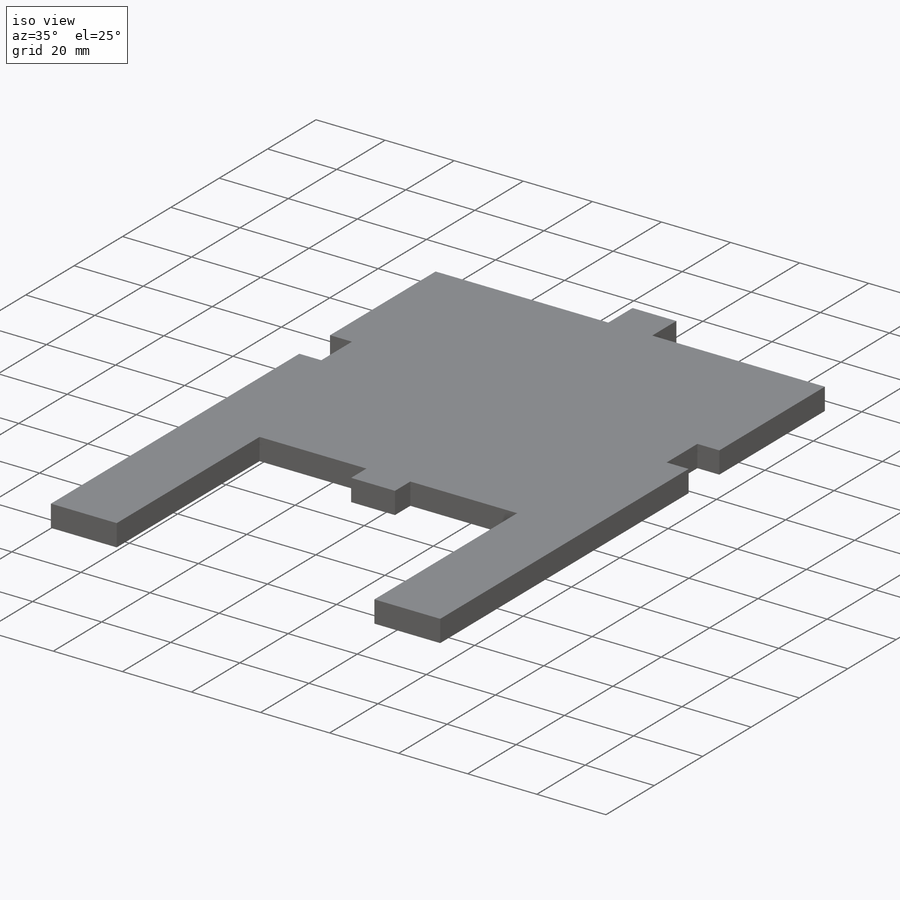
[diagram: iso view]
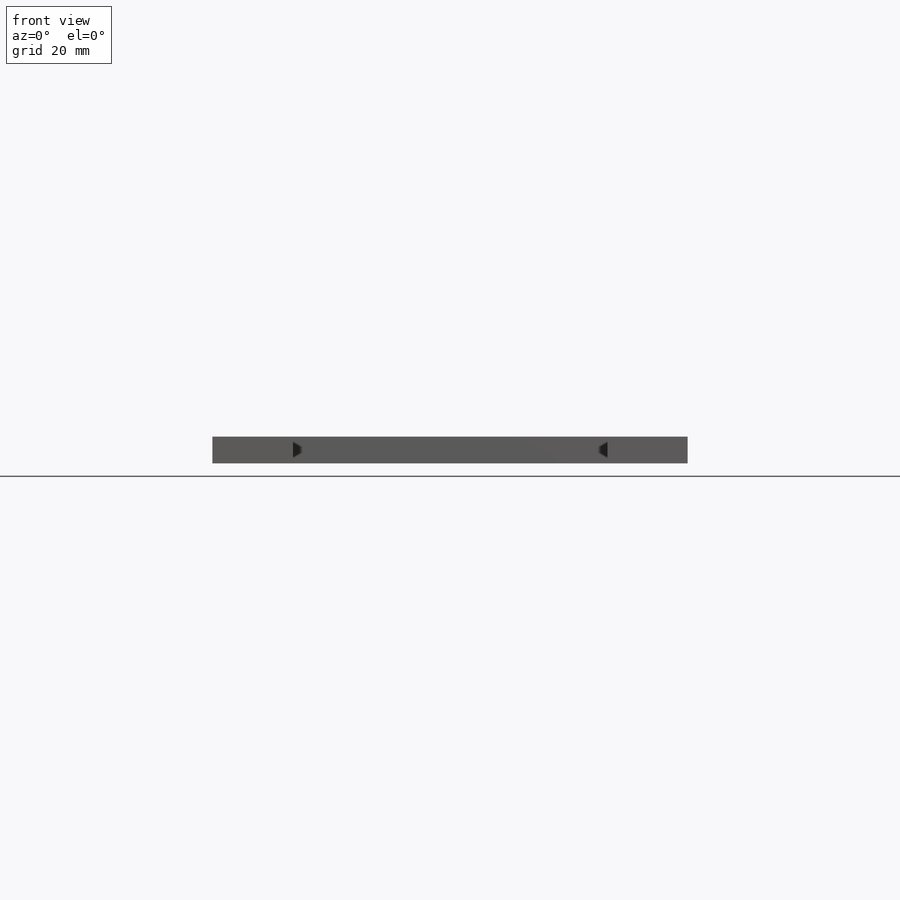
[diagram: front view]
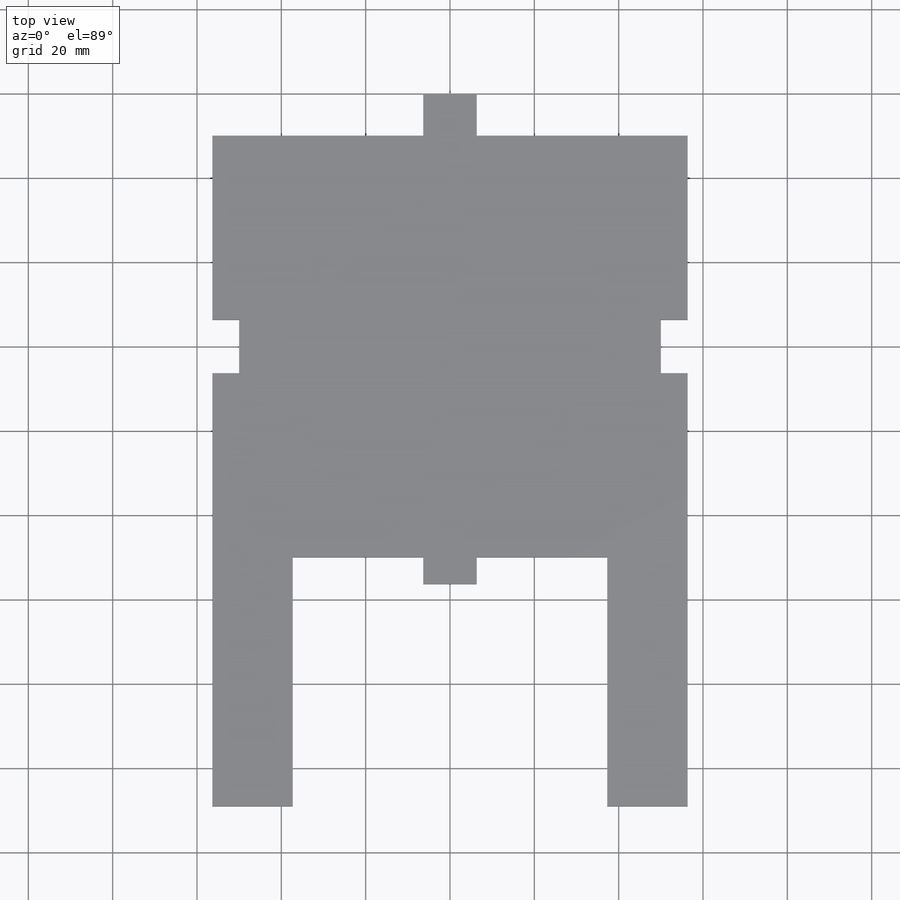
[diagram: top view]
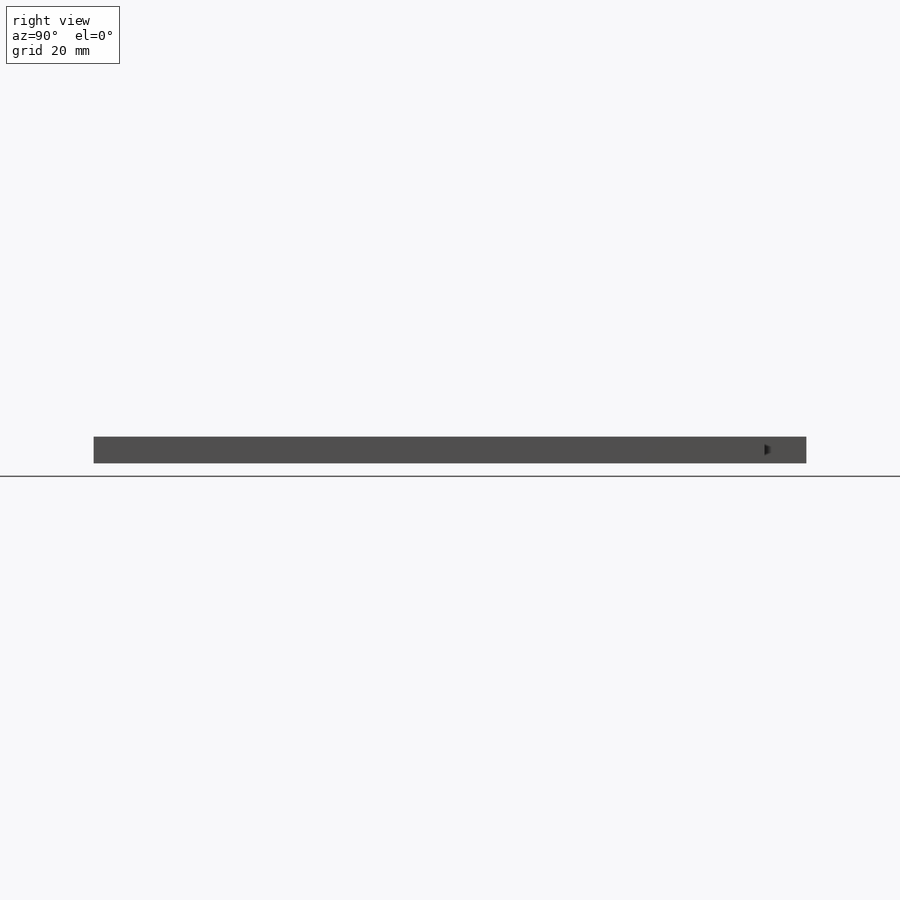
[diagram: right view]
SOLIDWORKS PART (.sldprt)
format: sldprt  version: not decoded by parser v0  size: 253,440 bytes
history: native  units: mm
features: sketch x6, extrude x4, material x1, cut_extrude x1, pattern_circular x1, plane x1, mirror x1 (+13 scaffold rows collapsed)
feature tree (28):
  scaffold x13  (default folders/planes/origin — collapsed)
  material  "Acrylic (Medium-high impact)"
  sketch  "Sketch1"  dims[D1=100.0mm D2=112.7mm]
  extrude  "Boss-Extrude1"  Depth=6.35mm
  sketch  "Sketch2"  dims[D1=12.7mm D2=6.35mm D3=3.175mm D4=50.0mm]
  cut_extrude  "Cut-Extrude1"  [1 undecoded]
  pattern_circular  "CirPattern1"  Count=2 Angle=180deg
  sketch  "Sketch3"  dims[D1=100.0mm]
  sketch  "Sketch5"  dims[D1=12.7mm D2=6.35mm D3=3.175mm D4=56.35mm]
  extrude  "Boss-Extrude2"  Depth=6.35mm
  sketch  "Sketch6"  dims[c1.D1=6.35mm c1.D2=~14.223815mm c2.D1=19.05mm]
  extrude  "Boss-Extrude3"  Depth=59.05mm
  plane  "Plane1"
  mirror  "Mirror1"
  sketch  "Sketch7"  dims[c1.D1=~3.375221mm c1.D2=~7.852734mm c2.D1=~15.705468mm c3.D1=90.0deg c4.D1=12.7mm c4.D2=6.35mm c4.D3=3.175mm c4.D4=56.35mm]
  extrude  "Boss-Extrude4"  Depth=10mm
decode coverage: 11 of 13 modeling features carry decoded parameters
note: ~ marks probable driven/reference dimensions
note: 1 parameter value undecoded
note: suppression state not decoded; provenance and decode notes live in map.json
